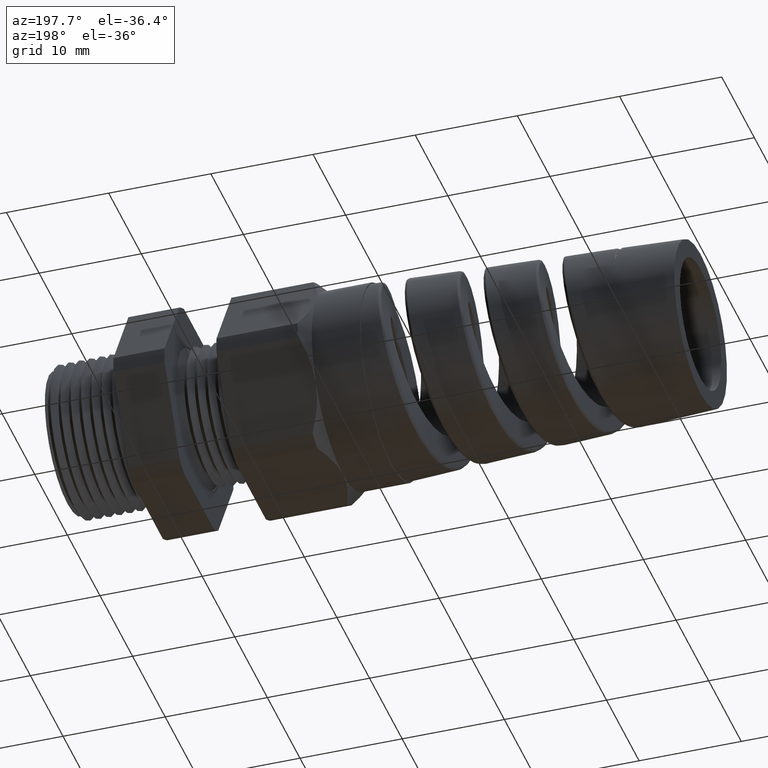
[diagram: clean part render]
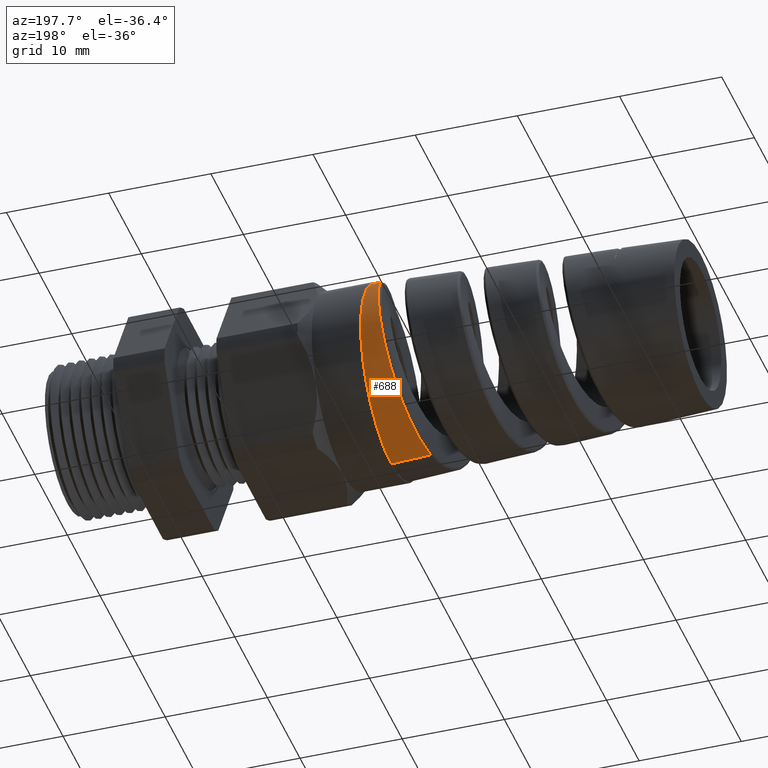
[diagram: same view with one face highlighted and labeled with its STEP entity id]
A machine part, auxiliary view. The second image highlights one B-rep face of the part: STEP entity #688.
In plain terms, the highlighted conical surface has half-angle 2.5 deg.
Its self-contained STEP definition (entity closure, byte-faithful):
#581 = ORIENTED_EDGE ( 'NONE', *, *, #689, .T. ) ;
#582 = ORIENTED_EDGE ( 'NONE', *, *, #625, .T. ) ;
#617 = EDGE_CURVE ( 'NONE', #626, #691, #5445, .T. ) ;
#619 = ORIENTED_EDGE ( 'NONE', *, *, #629, .F. ) ;
#625 = EDGE_CURVE ( 'NONE', #626, #627, #5498, .T. ) ;
#626 = VERTEX_POINT ( 'NONE', #5499 ) ;
#627 = VERTEX_POINT ( 'NONE', #5497 ) ;
#628 = EDGE_LOOP ( 'NONE', ( #582, #581, #619, #634 ) ) ;
#629 = EDGE_CURVE ( 'NONE', #691, #690, #5527, .T. ) ;
#634 = ORIENTED_EDGE ( 'NONE', *, *, #617, .F. ) ;
#688 = ADVANCED_FACE ( 'NONE', ( #5896 ), #5895, .T. ) ;
#689 = EDGE_CURVE ( 'NONE', #627, #690, #5936, .T. ) ;
#690 = VERTEX_POINT ( 'NONE', #5964 ) ;
#691 = VERTEX_POINT ( 'NONE', #5963 ) ;
#5442 = DIRECTION ( 'NONE',  ( 0.9990482215818576900, 0.0000000000000000000, -0.04361938736533638900 ) ) ;
#5443 = VECTOR ( 'NONE', #5442, 39.37007874015748100 ) ;
#5444 = CARTESIAN_POINT ( 'NONE',  ( -1.139999999999999900, 0.0000000000000000000, -0.3749999999999998900 ) ) ;
#5445 = LINE ( 'NONE', #5444, #5443 ) ;
#5472 = CARTESIAN_POINT ( 'NONE',  ( -1.318248333917628300, 0.3639468788694904500, 0.05036257088573307300 ) ) ;
#5473 = CARTESIAN_POINT ( 'NONE',  ( -1.321380025541869700, 0.3663285407341102000, 0.02639539558325076200 ) ) ;
#5474 = CARTESIAN_POINT ( 'NONE',  ( -1.322936808565205300, 0.3669239234573913900, 0.01442640633920711000 ) ) ;
#5475 = CARTESIAN_POINT ( 'NONE',  ( -1.327603317448643900, 0.3669618341605580500, -0.02143472118603593700 ) ) ;
#5476 = CARTESIAN_POINT ( 'NONE',  ( -1.330709161205049500, 0.3646729855531378700, -0.04528147169751097600 ) ) ;
#5477 = CARTESIAN_POINT ( 'NONE',  ( -1.337028305490178400, 0.3552697271319309500, -0.09283299472512214500 ) ) ;
#5478 = CARTESIAN_POINT ( 'NONE',  ( -1.340139215169813300, 0.3483029998878601200, -0.1157760902855309300 ) ) ;
#5479 = CARTESIAN_POINT ( 'NONE',  ( -1.344816496347431800, 0.3346114481041036500, -0.1489165610846907300 ) ) ;
#5480 = CARTESIAN_POINT ( 'NONE',  ( -1.346377510910820000, 0.3295026636167660000, -0.1597532679330475000 ) ) ;
#5481 = CARTESIAN_POINT ( 'NONE',  ( -1.349518636456872100, 0.3181720018976900200, -0.1809953621066132100 ) ) ;
#5482 = CARTESIAN_POINT ( 'NONE',  ( -1.351105067932039300, 0.3119188293492558000, -0.1914382829689502100 ) ) ;
#5483 = CARTESIAN_POINT ( 'NONE',  ( -1.355817659759098300, 0.2918622574288911000, -0.2214550120099760000 ) ) ;
#5484 = CARTESIAN_POINT ( 'NONE',  ( -1.358925688559573500, 0.2766890827595539500, -0.2399271437675020700 ) ) ;
#5485 = CARTESIAN_POINT ( 'NONE',  ( -1.365195112691833800, 0.2427893264116264800, -0.2738160639806453400 ) ) ;
#5486 = CARTESIAN_POINT ( 'NONE',  ( -1.368378248943797900, 0.2238820384096561500, -0.2893033017870212900 ) ) ;
#5487 = CARTESIAN_POINT ( 'NONE',  ( -1.374648226971193900, 0.1840112537879497200, -0.3158475033986630800 ) ) ;
#5488 = CARTESIAN_POINT ( 'NONE',  ( -1.377763826278260300, 0.1629087040539933500, -0.3270909982098970700 ) ) ;
#5489 = CARTESIAN_POINT ( 'NONE',  ( -1.382498536776481300, 0.1294796545506254300, -0.3408467681102728100 ) ) ;
#5490 = CARTESIAN_POINT ( 'NONE',  ( -1.384090535930536000, 0.1180118203536320400, -0.3449106858004503700 ) ) ;
#5491 = CARTESIAN_POINT ( 'NONE',  ( -1.387241790251336500, 0.09497938000316363800, -0.3518079728497020600 ) ) ;
#5492 = CARTESIAN_POINT ( 'NONE',  ( -1.390377427931231800, 0.07173120479410480300, -0.3575304285762393500 ) ) ;
#5493 = CARTESIAN_POINT ( 'NONE',  ( -1.393512794024574000, 0.04806293436784850300, -0.3609429546254559500 ) ) ;
#5494 = CARTESIAN_POINT ( 'NONE',  ( -1.396662462368121200, 0.02418412294133268800, -0.3631871630432377800 ) ) ;
#5495 = CARTESIAN_POINT ( 'NONE',  ( -1.398250708407410100, 0.01209172802958076600, -0.3637245305641454400 ) ) ;
#5496 = CARTESIAN_POINT ( 'NONE',  ( -1.399838830094769900, -1.332349380199279500E-013, -0.3636551916738174900 ) ) ;
#5497 = CARTESIAN_POINT ( 'NONE',  ( -1.249796680272786000, -1.667041896009375000E-015, 0.3702061734110656000 ) ) ;
#5498 = B_SPLINE_CURVE_WITH_KNOTS ( 'NONE', 3,
 ( #5496, #5495, #5494, #5493, #5492, #5491, #5490, #5489, #5488, #5487, #5486, #5485, #5484, #5483, #5482, #5481, #5480, #5479, #5478, #5477, #5476, #5475, #5474, #5473, #5472, #5547, #5546, #5545, #5544, #5543, #5542, #5541, #5540, #5539, #5538, #5537, #5536, #5535, #5534, #5533, #5532, #5531, #5530, #5529, #5528 ),
 .UNSPECIFIED., .F., .F.,
 ( 4, 2, 1, 2, 2, 2, 2, 2, 2, 2, 2, 2, 2, 2, 2, 2, 2, 2, 2, 2, 2, 2, 4 ),
 ( 0.1504981551506741100, 0.1514281983228587800, 0.1523582414950434300, 0.1532882846672281000, 0.1542183278394127800, 0.1560784141837821000, 0.1579385005281514500, 0.1597985868725207700, 0.1607286300447054500, 0.1616586732168901200, 0.1635187595612594400, 0.1653788459056287600, 0.1663088890778134400, 0.1672389322499981100, 0.1690990185943674300, 0.1709591049387367800, 0.1728191912831061300, 0.1737492344552908100, 0.1746792776274754800, 0.1765393639718448000, 0.1783994503162141500, 0.1793294934883988300, 0.1802595366605835000 ),
 .UNSPECIFIED. ) ;
#5499 = CARTESIAN_POINT ( 'NONE',  ( -1.399838830094769900, -1.332349380199279500E-013, -0.3636551916738174900 ) ) ;
#5523 = DIRECTION ( 'NONE',  ( 0.0000000000000000000, 0.0000000000000000000, 1.000000000000000000 ) ) ;
#5524 = DIRECTION ( 'NONE',  ( 1.000000000000000000, 0.0000000000000000000, 0.0000000000000000000 ) ) ;
#5525 = CARTESIAN_POINT ( 'NONE',  ( -1.248060804240437700, 0.0000000000000000000, 0.0000000000000000000 ) ) ;
#5526 = AXIS2_PLACEMENT_3D ( 'NONE', #5525, #5524, #5523 ) ;
#5527 = CIRCLE ( 'NONE', #5526, 0.3702819633954101400 ) ;
#5528 = CARTESIAN_POINT ( 'NONE',  ( -1.249796680272786000, -1.667041896009375000E-015, 0.3702061734110656000 ) ) ;
#5529 = CARTESIAN_POINT ( 'NONE',  ( -1.251348048796083300, 0.01202589619947641600, 0.3701384391985397800 ) ) ;
#5530 = CARTESIAN_POINT ( 'NONE',  ( -1.252916101455375100, 0.02417661582441663800, 0.3694759297034828600 ) ) ;
#5531 = CARTESIAN_POINT ( 'NONE',  ( -1.256025590674070700, 0.04814643122507112500, 0.3669855953348982200 ) ) ;
#5532 = CARTESIAN_POINT ( 'NONE',  ( -1.257570900371320000, 0.05999578027051426900, 0.3651641523125560600 ) ) ;
#5533 = CARTESIAN_POINT ( 'NONE',  ( -1.262201456805573700, 0.09514343108061239200, 0.3580103297154417800 ) ) ;
#5534 = CARTESIAN_POINT ( 'NONE',  ( -1.265281152942032000, 0.1180451393628870700, 0.3510043742678322600 ) ) ;
#5535 = CARTESIAN_POINT ( 'NONE',  ( -1.271544801089886000, 0.1627319132121752300, 0.3323477231510937900 ) ) ;
#5536 = CARTESIAN_POINT ( 'NONE',  ( -1.274640881370356000, 0.1838935228346141900, 0.3209441252324929400 ) ) ;
#5537 = CARTESIAN_POINT ( 'NONE',  ( -1.279282098146956400, 0.2136733662220531000, 0.3009777580044112900 ) ) ;
#5538 = CARTESIAN_POINT ( 'NONE',  ( -1.280830683404076100, 0.2232851692880766500, 0.2938359528872640000 ) ) ;
#5539 = CARTESIAN_POINT ( 'NONE',  ( -1.283945130992701500, 0.2418653961038061700, 0.2785617887053717900 ) ) ;
#5540 = CARTESIAN_POINT ( 'NONE',  ( -1.285519111155293900, 0.2508758232001895300, 0.2703825272472462600 ) ) ;
#5541 = CARTESIAN_POINT ( 'NONE',  ( -1.290200581883497800, 0.2764099090499795900, 0.2448014290317219500 ) ) ;
#5542 = CARTESIAN_POINT ( 'NONE',  ( -1.293284463426398000, 0.2915649522741465800, 0.2263048030848600600 ) ) ;
#5543 = CARTESIAN_POINT ( 'NONE',  ( -1.299498888227465600, 0.3181928851041795900, 0.1864872188418628400 ) ) ;
#5544 = CARTESIAN_POINT ( 'NONE',  ( -1.302658899689024900, 0.3297250642071465900, 0.1649395440707771300 ) ) ;
#5545 = CARTESIAN_POINT ( 'NONE',  ( -1.308885745007973200, 0.3480897768590289800, 0.1206532694327309000 ) ) ;
#5546 = CARTESIAN_POINT ( 'NONE',  ( -1.311977327912393600, 0.3550583862548189500, 0.09778684651091015800 ) ) ;
#5547 = CARTESIAN_POINT ( 'NONE',  ( -1.316668118858798500, 0.3621468613147734200, 0.06239985835347412700 ) ) ;
#5895 = CONICAL_SURFACE ( 'NONE', #5935, 0.3749999999999998900, 0.04363323129985862600 ) ;
#5896 = FACE_OUTER_BOUND ( 'NONE', #628, .T. ) ;
#5901 = CARTESIAN_POINT ( 'NONE',  ( -1.139999999999999900, 0.0000000000000000000, 0.0000000000000000000 ) ) ;
#5931 = VECTOR ( 'NONE', #5965, 39.37007874015748100 ) ;
#5932 = CARTESIAN_POINT ( 'NONE',  ( -1.139999999999999900, 4.592425496802573000E-017, 0.3749999999999998900 ) ) ;
#5933 = DIRECTION ( 'NONE',  ( 0.0000000000000000000, 0.0000000000000000000, -1.000000000000000000 ) ) ;
#5934 = DIRECTION ( 'NONE',  ( 1.000000000000000000, 0.0000000000000000000, 0.0000000000000000000 ) ) ;
#5935 = AXIS2_PLACEMENT_3D ( 'NONE', #5901, #5934, #5933 ) ;
#5936 = LINE ( 'NONE', #5932, #5931 ) ;
#5963 = CARTESIAN_POINT ( 'NONE',  ( -1.248060804240437700, 0.0000000000000000000, -0.3702819633954102000 ) ) ;
#5964 = CARTESIAN_POINT ( 'NONE',  ( -1.248060804240437700, 4.534646212541864600E-017, 0.3702819633954102000 ) ) ;
#5965 = DIRECTION ( 'NONE',  ( 0.9990482215818576900, 5.341834311772771000E-018, 0.04361938736533638900 ) ) ;